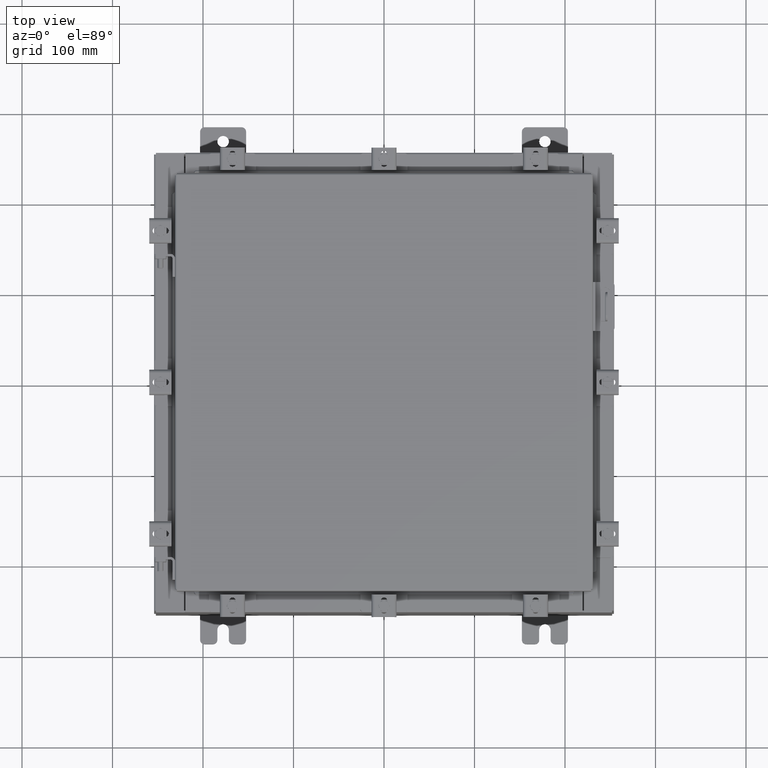
[diagram: clean part render]
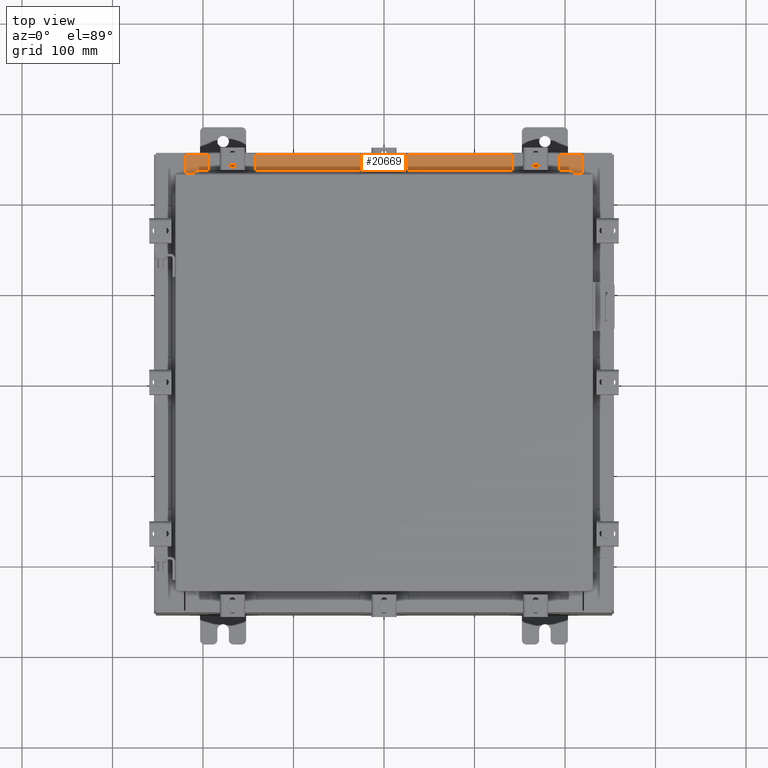
[diagram: same view with one face highlighted and labeled with its STEP entity id]
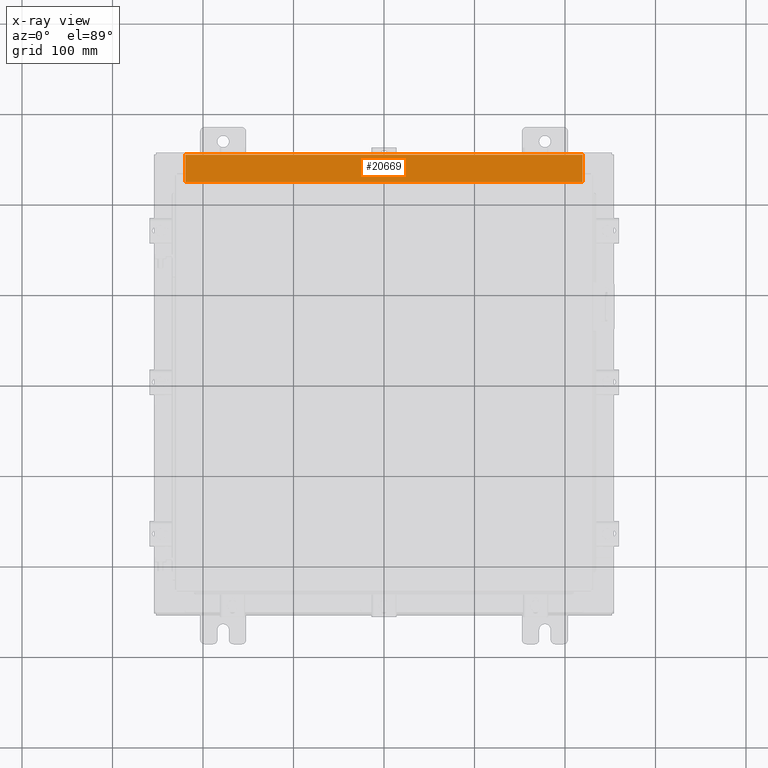
[diagram: x-ray of the same camera — body ghosted, the highlighted face saturated]
A machine part, top view. The second image highlights one B-rep face of the part: STEP entity #20669.
The next image is the same camera in x-ray: the body ghosted, the highlighted face saturated — about 0% of this face is hidden behind the body in this view.
In plain terms, the highlighted planar face has unit normal (0, 0, 1).
Its self-contained STEP definition (entity closure, byte-faithful):
#750 = AXIS2_PLACEMENT_3D ( 'NONE', #2916, #15120, #4691 ) ;
#904 = LINE ( 'NONE', #16649, #10729 ) ;
#1257 = LINE ( 'NONE', #11579, #14080 ) ;
#1888 = ORIENTED_EDGE ( 'NONE', *, *, #12973, .F. ) ;
#2811 = VERTEX_POINT ( 'NONE', #10323 ) ;
#2916 = CARTESIAN_POINT ( 'NONE',  ( 0.0000000000000000000, 1.425992975200418500E-014, 4.000000000000000000 ) ) ;
#3080 = EDGE_LOOP ( 'NONE', ( #14497, #1888, #17904, #14573 ) ) ;
#3175 = CARTESIAN_POINT ( 'NONE',  ( -2.773851121247567100E-018, -0.08770000000000000000, 4.000000000000000900 ) ) ;
#3268 = EDGE_CURVE ( 'NONE', #5536, #4066, #19872, .T. ) ;
#4066 = VERTEX_POINT ( 'NONE', #20751 ) ;
#4691 = DIRECTION ( 'NONE',  ( 0.0000000000000000000, -1.000000000000000000, 3.566381192773190000E-015 ) ) ;
#5536 = VERTEX_POINT ( 'NONE', #19230 ) ;
#6028 = EDGE_CURVE ( 'NONE', #2811, #11730, #1257, .T. ) ;
#6518 = DIRECTION ( 'NONE',  ( -0.0000000000000000000, -1.000000000000000000, 3.566381192773190000E-015 ) ) ;
#6778 = DIRECTION ( 'NONE',  ( -1.000000000000000000, 3.162886113166609200E-017, -1.128005754888089100E-031 ) ) ;
#7913 = DIRECTION ( 'NONE',  ( -1.000000000000000000, 0.0000000000000000000, 0.0000000000000000000 ) ) ;
#8002 = LINE ( 'NONE', #3175, #21370 ) ;
#8186 = CARTESIAN_POINT ( 'NONE',  ( 8.637200000000000000, -1.300299999999999800, 4.000000000000004400 ) ) ;
#10323 = CARTESIAN_POINT ( 'NONE',  ( -8.637200000000000000, -1.287299999999999200, 4.000000000000004400 ) ) ;
#10729 = VECTOR ( 'NONE', #7913, 39.37007874015748100 ) ;
#11579 = CARTESIAN_POINT ( 'NONE',  ( -8.637200000000000000, -0.07469999999999973900, 4.000000000000000000 ) ) ;
#11638 = PLANE ( 'NONE',  #750 ) ;
#11730 = VERTEX_POINT ( 'NONE', #18502 ) ;
#12973 = EDGE_CURVE ( 'NONE', #4066, #2811, #904, .T. ) ;
#13337 = DIRECTION ( 'NONE',  ( -0.0000000000000000000, 1.000000000000000000, -3.566381192773190000E-015 ) ) ;
#14080 = VECTOR ( 'NONE', #13337, 39.37007874015748100 ) ;
#14497 = ORIENTED_EDGE ( 'NONE', *, *, #6028, .F. ) ;
#14573 = ORIENTED_EDGE ( 'NONE', *, *, #22095, .T. ) ;
#15120 = DIRECTION ( 'NONE',  ( 0.0000000000000000000, 3.566381192773190000E-015, 1.000000000000000000 ) ) ;
#15163 = FACE_OUTER_BOUND ( 'NONE', #3080, .T. ) ;
#15243 = VECTOR ( 'NONE', #6518, 39.37007874015748100 ) ;
#16649 = CARTESIAN_POINT ( 'NONE',  ( 8.637200000000000000, -1.287299999999999900, 4.000000000000003600 ) ) ;
#17904 = ORIENTED_EDGE ( 'NONE', *, *, #3268, .F. ) ;
#18502 = CARTESIAN_POINT ( 'NONE',  ( -8.637200000000000000, -0.08770000000000000000, 4.000000000000000000 ) ) ;
#19230 = CARTESIAN_POINT ( 'NONE',  ( 8.637200000000000000, -0.08769999999999965300, 4.000000000000000000 ) ) ;
#19872 = LINE ( 'NONE', #8186, #15243 ) ;
#20669 = ADVANCED_FACE ( 'NONE', ( #15163 ), #11638, .T. ) ;
#20751 = CARTESIAN_POINT ( 'NONE',  ( 8.637200000000000000, -1.287299999999999900, 4.000000000000004400 ) ) ;
#21370 = VECTOR ( 'NONE', #6778, 39.37007874015748100 ) ;
#22095 = EDGE_CURVE ( 'NONE', #5536, #11730, #8002, .T. ) ;